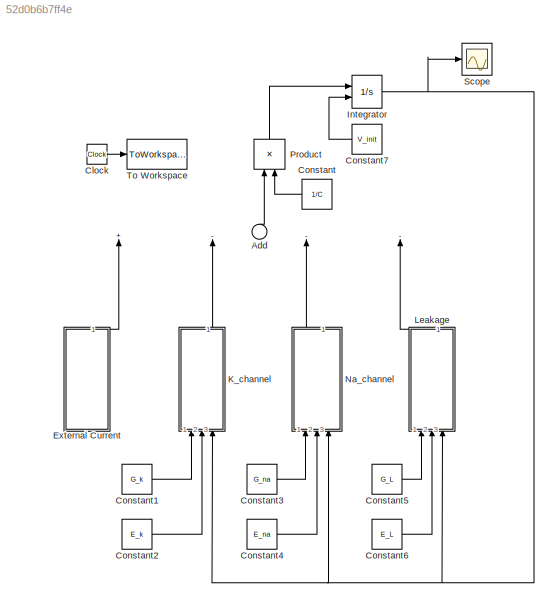
MODEL slx_52d0b6b7ff4e
KIND model
CONFIG AbsTol = auto
CONFIG EnableMultiTasking = off
CONFIG FixedStep = auto
CONFIG MaxStep = auto
CONFIG MinStep = auto
CONFIG RelTol = 1e-9
CONFIG SampleTimeConstraint = Unconstrained
CONFIG Solver = VariableStepAuto
CONFIG SolverName = VariableStepAuto
CONFIG StartTime = 0.0
CONFIG StopTime = 10.0
BLOCK [Sum] Add
  InputSameDT = off
  Inputs = +---
  OutDataTypeStr = Inherit: Inherit via internal rule
  Ports = [4, 1]
  SaturateOnIntegerOverflow = off
BLOCK [Clock] Clock
BLOCK [Constant] Constant
  Value = 1/C
BLOCK [Constant] Constant1
  Value = G_k
BLOCK [Constant] Constant2
  Value = E_k
BLOCK [Constant] Constant3
  Value = G_na
BLOCK [Constant] Constant4
  Value = E_na
BLOCK [Constant] Constant5
  Value = G_L
BLOCK [Constant] Constant6
  Value = E_L
BLOCK [Constant] Constant7
  Value = V_init
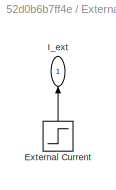
BLOCK [SubSystem] External Current
  Ports = [0, 1]
  RequestExecContextInheritance = off
BLOCK [Step] External Current/External Current
  After = I_stim
  SampleTime = 0
BLOCK [Outport] External Current/I_ext
  IconDisplay = Port number
BLOCK [Integrator] Integrator
  InitialConditionSource = external
  Ports = [2, 1]
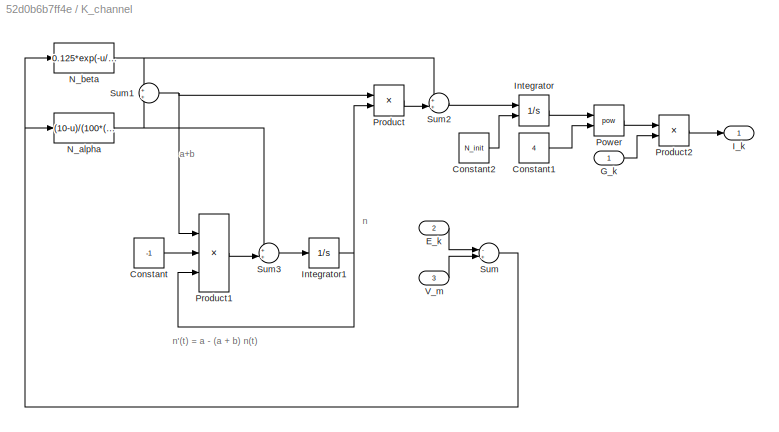
BLOCK [SubSystem] K_channel
  Ports = [3, 1]
  RequestExecContextInheritance = off
BLOCK [Constant] K_channel/Constant
  Value = -1
BLOCK [Constant] K_channel/Constant1
  Value = 4
BLOCK [Constant] K_channel/Constant2
  Value = N_init
BLOCK [Inport] K_channel/E_k 
  IconDisplay = Port number
  Port = 2
BLOCK [Inport] K_channel/G_k
  IconDisplay = Port number
BLOCK [Outport] K_channel/I_k
  IconDisplay = Port number
BLOCK [Integrator] K_channel/Integrator
  InitialConditionSource = external
  Ports = [2, 1]
BLOCK [Integrator] K_channel/Integrator1
  Ports = [1, 1]
BLOCK [Fcn] K_channel/N_alpha
  Expr = (10-u)/(100*(exp((10-u)/10)-1))
BLOCK [Fcn] K_channel/N_beta
  Expr = 0.125*exp(-u/80)
BLOCK [Math] K_channel/Power
  Operator = pow
  Ports = [2, 1]
BLOCK [Product] K_channel/Product
  InputSameDT = off
  OutDataTypeStr = Inherit: Inherit via internal rule
  Ports = [2, 1]
  RndMeth = Floor
  SaturateOnIntegerOverflow = off
BLOCK [Product] K_channel/Product1
  InputSameDT = off
  Inputs = 3
  OutDataTypeStr = Inherit: Inherit via internal rule
  Ports = [3, 1]
  RndMeth = Floor
  SaturateOnIntegerOverflow = off
BLOCK [Product] K_channel/Product2
  InputSameDT = off
  OutDataTypeStr = Inherit: Inherit via internal rule
  Ports = [2, 1]
  RndMeth = Floor
  SaturateOnIntegerOverflow = off
BLOCK [Sum] K_channel/Sum
  IconShape = round
  InputSameDT = off
  Inputs = -+
  OutDataTypeStr = Inherit: Inherit via internal rule
  Ports = [2, 1]
  SaturateOnIntegerOverflow = off
BLOCK [Sum] K_channel/Sum1
  IconShape = round
  InputSameDT = off
  OutDataTypeStr = Inherit: Inherit via internal rule
  Ports = [2, 1]
  SaturateOnIntegerOverflow = off
BLOCK [Sum] K_channel/Sum2
  IconShape = round
  InputSameDT = off
  Inputs = ++|
  OutDataTypeStr = Inherit: Inherit via internal rule
  Ports = [2, 1]
  SaturateOnIntegerOverflow = off
BLOCK [Sum] K_channel/Sum3
  IconShape = round
  InputSameDT = off
  Inputs = ++|
  OutDataTypeStr = Inherit: Inherit via internal rule
  Ports = [2, 1]
  SaturateOnIntegerOverflow = off
BLOCK [Inport] K_channel/V_m 
  IconDisplay = Port number
  Port = 3
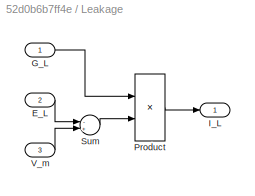
BLOCK [SubSystem] Leakage
  Ports = [3, 1]
  RequestExecContextInheritance = off
BLOCK [Inport] Leakage/E_L
  IconDisplay = Port number
  Port = 2
BLOCK [Inport] Leakage/G_L
  IconDisplay = Port number
BLOCK [Outport] Leakage/I_L
  IconDisplay = Port number
BLOCK [Product] Leakage/Product
  InputSameDT = off
  OutDataTypeStr = Inherit: Inherit via internal rule
  Ports = [2, 1]
  RndMeth = Floor
  SaturateOnIntegerOverflow = off
BLOCK [Sum] Leakage/Sum
  IconShape = round
  InputSameDT = off
  Inputs = -+
  OutDataTypeStr = Inherit: Inherit via internal rule
  Ports = [2, 1]
  SaturateOnIntegerOverflow = off
BLOCK [Inport] Leakage/V_m
  IconDisplay = Port number
  Port = 3
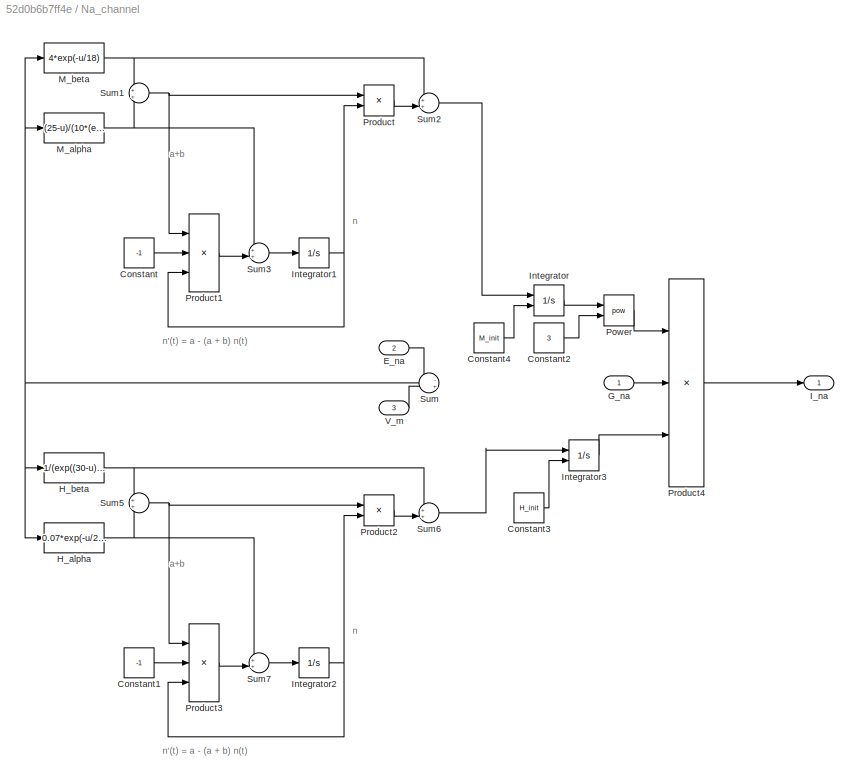
BLOCK [SubSystem] Na_channel
  Ports = [3, 1]
  RequestExecContextInheritance = off
BLOCK [Constant] Na_channel/Constant
  Value = -1
BLOCK [Constant] Na_channel/Constant1
  Value = -1
BLOCK [Constant] Na_channel/Constant2
  Value = 3
BLOCK [Constant] Na_channel/Constant3
  Value = H_init
BLOCK [Constant] Na_channel/Constant4
  Value = M_init
BLOCK [Inport] Na_channel/E_na
  IconDisplay = Port number
  Port = 2
BLOCK [Inport] Na_channel/G_na 
  IconDisplay = Port number
BLOCK [Fcn] Na_channel/H_alpha
  Expr = 0.07*exp(-u/20)
BLOCK [Fcn] Na_channel/H_beta
  Expr = 1/(exp((30-u)/10)+1)
BLOCK [Outport] Na_channel/I_na
  IconDisplay = Port number
BLOCK [Integrator] Na_channel/Integrator
  InitialConditionSource = external
  Ports = [2, 1]
BLOCK [Integrator] Na_channel/Integrator1
  Ports = [1, 1]
BLOCK [Integrator] Na_channel/Integrator2
  Ports = [1, 1]
BLOCK [Integrator] Na_channel/Integrator3
  InitialConditionSource = external
  Ports = [2, 1]
BLOCK [Fcn] Na_channel/M_alpha
  Expr = (25-u)/(10*(exp((25-u)/10)-1))
BLOCK [Fcn] Na_channel/M_beta
  Expr = 4*exp(-u/18)
BLOCK [Math] Na_channel/Power
  Operator = pow
  Ports = [2, 1]
BLOCK [Product] Na_channel/Product
  InputSameDT = off
  OutDataTypeStr = Inherit: Inherit via internal rule
  Ports = [2, 1]
  RndMeth = Floor
  SaturateOnIntegerOverflow = off
BLOCK [Product] Na_channel/Product1
  InputSameDT = off
  Inputs = 3
  OutDataTypeStr = Inherit: Inherit via internal rule
  Ports = [3, 1]
  RndMeth = Floor
  SaturateOnIntegerOverflow = off
BLOCK [Product] Na_channel/Product2
  InputSameDT = off
  OutDataTypeStr = Inherit: Inherit via internal rule
  Ports = [2, 1]
  RndMeth = Floor
  SaturateOnIntegerOverflow = off
BLOCK [Product] Na_channel/Product3
  InputSameDT = off
  Inputs = 3
  OutDataTypeStr = Inherit: Inherit via internal rule
  Ports = [3, 1]
  RndMeth = Floor
  SaturateOnIntegerOverflow = off
BLOCK [Product] Na_channel/Product4
  InputSameDT = off
  Inputs = 3
  OutDataTypeStr = Inherit: Inherit via internal rule
  Ports = [3, 1]
  RndMeth = Floor
  SaturateOnIntegerOverflow = off
BLOCK [Sum] Na_channel/Sum
  IconShape = round
  InputSameDT = off
  Inputs = -+
  OutDataTypeStr = Inherit: Inherit via internal rule
  Ports = [2, 1]
  SaturateOnIntegerOverflow = off
BLOCK [Sum] Na_channel/Sum1
  IconShape = round
  InputSameDT = off
  OutDataTypeStr = Inherit: Inherit via internal rule
  Ports = [2, 1]
  SaturateOnIntegerOverflow = off
BLOCK [Sum] Na_channel/Sum2
  IconShape = round
  InputSameDT = off
  Inputs = ++|
  OutDataTypeStr = Inherit: Inherit via internal rule
  Ports = [2, 1]
  SaturateOnIntegerOverflow = off
BLOCK [Sum] Na_channel/Sum3
  IconShape = round
  InputSameDT = off
  Inputs = ++|
  OutDataTypeStr = Inherit: Inherit via internal rule
  Ports = [2, 1]
  SaturateOnIntegerOverflow = off
BLOCK [Sum] Na_channel/Sum5
  IconShape = round
  InputSameDT = off
  OutDataTypeStr = Inherit: Inherit via internal rule
  Ports = [2, 1]
  SaturateOnIntegerOverflow = off
BLOCK [Sum] Na_channel/Sum6
  IconShape = round
  InputSameDT = off
  Inputs = ++|
  OutDataTypeStr = Inherit: Inherit via internal rule
  Ports = [2, 1]
  SaturateOnIntegerOverflow = off
BLOCK [Sum] Na_channel/Sum7
  IconShape = round
  InputSameDT = off
  Inputs = ++|
  OutDataTypeStr = Inherit: Inherit via internal rule
  Ports = [2, 1]
  SaturateOnIntegerOverflow = off
BLOCK [Inport] Na_channel/V_m
  IconDisplay = Port number
  Port = 3
BLOCK [Product] Product
  InputSameDT = off
  OutDataTypeStr = Inherit: Inherit via internal rule
  Ports = [2, 1]
  RndMeth = Floor
  SaturateOnIntegerOverflow = off
BLOCK [Scope] Scope
  Floating = off
  NumInputPorts = 1
  Ports = [1]
  ScopeSpecificationString = Simulink.scopes.TimeScopeBlockCfg('CurrentConfiguration', extmgr.ConfigurationSet(extmgr.Configuration('Core','General UI',true),extmgr.Configuration('Core','Source UI',true),extmgr.Configuration('Sources','WiredSimulink',true),extmgr.Configuration('Visuals','Time Domain',true),extmgr.Configuration('Tools','Plot Navigation',true),extmgr.Configuration('Tools','Measurements',true)),'Version','2019a'...<+1ch>
BLOCK [ToWorkspace] To Workspace
  FixptAsFi = on
  MaxDataPoints = inf
  Ports = [1]
  SampleTime = -1
  VariableName = Time
ANNOTATION K_channel: a+b
ANNOTATION K_channel: n
ANNOTATION K_channel: n'(t) = a - (a + b) n(t)
ANNOTATION Na_channel: a+b
ANNOTATION Na_channel: n
ANNOTATION Na_channel: n'(t) = a - (a + b) n(t)
LINE Add:1 -> Product:1
LINE Clock:1 -> To Workspace:1
LINE Constant1:1 -> K_channel:1
LINE Constant2:1 -> K_channel:2
LINE Constant3:1 -> Na_channel:1
LINE Constant4:1 -> Na_channel:2
LINE Constant5:1 -> Leakage:1
LINE Constant6:1 -> Leakage:2
LINE Constant7:1 -> Integrator:2
LINE Constant:1 -> Product:2
LINE External Current/External Current:1 -> External Current/I_ext:1
LINE External Current:1 -> Add:1
NET Integrator:1 -> K_channel:3, Leakage:3, Na_channel:3, Scope:1
LINE K_channel/Constant1:1 -> K_channel/Power:2
LINE K_channel/Constant2:1 -> K_channel/Integrator:2
LINE K_channel/Constant:1 -> K_channel/Product1:2
LINE K_channel/E_k :1 -> K_channel/Sum:1
LINE K_channel/G_k:1 -> K_channel/Product2:2
NET K_channel/Integrator1:1 -> K_channel/Product1:3, K_channel/Product:2
LINE K_channel/Integrator:1 -> K_channel/Power:1
NET K_channel/N_alpha:1 -> K_channel/Sum1:2, K_channel/Sum3:1
NET K_channel/N_beta:1 -> K_channel/Sum1:1, K_channel/Sum2:1
LINE K_channel/Power:1 -> K_channel/Product2:1
LINE K_channel/Product1:1 -> K_channel/Sum3:2
LINE K_channel/Product2:1 -> K_channel/I_k:1
LINE K_channel/Product:1 -> K_channel/Sum2:2
NET K_channel/Sum1:1 -> K_channel/Product1:1, K_channel/Product:1
LINE K_channel/Sum2:1 -> K_channel/Integrator:1
LINE K_channel/Sum3:1 -> K_channel/Integrator1:1
NET K_channel/Sum:1 -> K_channel/N_alpha:1, K_channel/N_beta:1
LINE K_channel/V_m :1 -> K_channel/Sum:2
LINE K_channel:1 -> Add:2
LINE Leakage/E_L:1 -> Leakage/Sum:1
LINE Leakage/G_L:1 -> Leakage/Product:1
LINE Leakage/Product:1 -> Leakage/I_L:1
LINE Leakage/Sum:1 -> Leakage/Product:2
LINE Leakage/V_m:1 -> Leakage/Sum:2
LINE Leakage:1 -> Add:4
LINE Na_channel/Constant1:1 -> Na_channel/Product3:2
LINE Na_channel/Constant2:1 -> Na_channel/Power:2
LINE Na_channel/Constant3:1 -> Na_channel/Integrator3:2
LINE Na_channel/Constant4:1 -> Na_channel/Integrator:2
LINE Na_channel/Constant:1 -> Na_channel/Product1:2
LINE Na_channel/E_na:1 -> Na_channel/Sum:1
LINE Na_channel/G_na :1 -> Na_channel/Product4:2
NET Na_channel/H_alpha:1 -> Na_channel/Sum5:2, Na_channel/Sum7:1
NET Na_channel/H_beta:1 -> Na_channel/Sum5:1, Na_channel/Sum6:1
NET Na_channel/Integrator1:1 -> Na_channel/Product1:3, Na_channel/Product:2
NET Na_channel/Integrator2:1 -> Na_channel/Product2:2, Na_channel/Product3:3
LINE Na_channel/Integrator3:1 -> Na_channel/Product4:3
LINE Na_channel/Integrator:1 -> Na_channel/Power:1
NET Na_channel/M_alpha:1 -> Na_channel/Sum1:2, Na_channel/Sum3:1
NET Na_channel/M_beta:1 -> Na_channel/Sum1:1, Na_channel/Sum2:1
LINE Na_channel/Power:1 -> Na_channel/Product4:1
LINE Na_channel/Product1:1 -> Na_channel/Sum3:2
LINE Na_channel/Product2:1 -> Na_channel/Sum6:2
LINE Na_channel/Product3:1 -> Na_channel/Sum7:2
LINE Na_channel/Product4:1 -> Na_channel/I_na:1
LINE Na_channel/Product:1 -> Na_channel/Sum2:2
NET Na_channel/Sum1:1 -> Na_channel/Product1:1, Na_channel/Product:1
LINE Na_channel/Sum2:1 -> Na_channel/Integrator:1
LINE Na_channel/Sum3:1 -> Na_channel/Integrator1:1
NET Na_channel/Sum5:1 -> Na_channel/Product2:1, Na_channel/Product3:1
LINE Na_channel/Sum6:1 -> Na_channel/Integrator3:1
LINE Na_channel/Sum7:1 -> Na_channel/Integrator2:1
NET Na_channel/Sum:1 -> Na_channel/H_alpha:1, Na_channel/H_beta:1, Na_channel/M_alpha:1, Na_channel/M_beta:1
LINE Na_channel/V_m:1 -> Na_channel/Sum:2
LINE Na_channel:1 -> Add:3
LINE Product:1 -> Integrator:1
note: NET lines group one-source signal fan-out (src -> all destinations, sorted); 1:1 wires keep LINE
